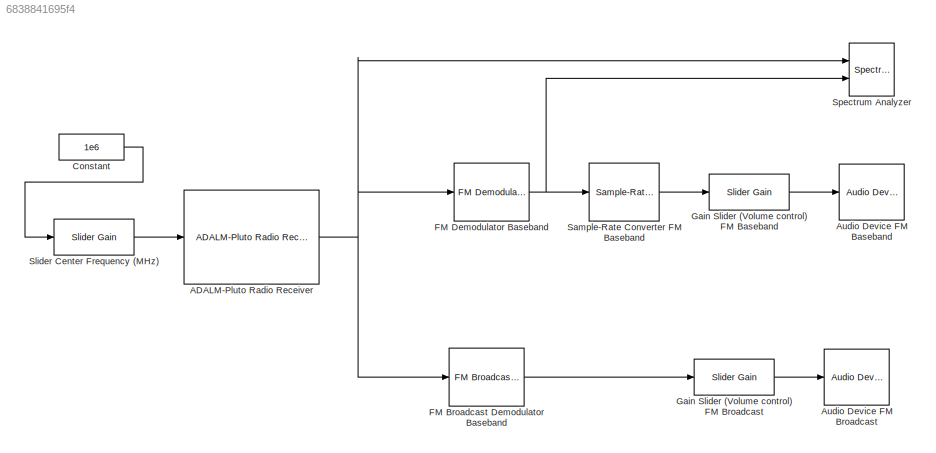
MODEL slx_6838841695f4
KIND model
CONFIG AbsTol = auto
CONFIG EnableMultiTasking = off
CONFIG FixedStep = auto
CONFIG MaxStep = auto
CONFIG MinStep = auto
CONFIG RelTol = 1e-3
CONFIG SampleTimeConstraint = Unconstrained
CONFIG Solver = FixedStepDiscrete
CONFIG SolverName = FixedStepDiscrete
CONFIG StartTime = 0.0
CONFIG StopTime = inf
BLOCK [Reference] ADALM-Pluto Radio Receiver  REF=plutoradiolib/ADALM-Pluto Radio
Receiver
  Ports = [1, 1]
  SourceBlock = plutoradiolib/ADALM-Pluto Radio\nReceiver
  SourceProductBaseCode = PLUTO
  SourceType = comm.SDRRxPluto
BLOCK [Reference] Audio Device FM Baseband  REF=dspsnks4/Audio Device
Writer
  Ports = [1]
  SourceBlock = dspsnks4/Audio Device\nWriter
  SourceProductBaseCode = DS
  SourceType = Audio Device Writer
BLOCK [Reference] Audio Device FM Broadcast  REF=dspsnks4/Audio Device
Writer
  Ports = [1]
  SourceBlock = dspsnks4/Audio Device\nWriter
  SourceProductBaseCode = DS
  SourceType = Audio Device Writer
BLOCK [Constant] Constant
  Value = 1e6
BLOCK [Reference] FM Broadcast Demodulator Baseband  REF=commanabbnd3/FM Broadcast
Demodulator
Baseband
  Ports = [1, 1]
  SourceBlock = commanabbnd3/FM Broadcast\nDemodulator\nBaseband
  SourceProductBaseCode = CM
  SourceType = FM Broadcast Demodulator Baseband
BLOCK [Reference] FM Demodulator Baseband   REF=commanabbnd3/FM
Demodulator
Baseband 
  Ports = [1, 1]
  SourceBlock = commanabbnd3/FM\nDemodulator\nBaseband
  SourceProductBaseCode = CM
  SourceType = FM Demodulator Baseband
BLOCK [Reference] Gain Slider (Volume control) FM Baseband  REF=simulink/Math
Operations/Slider
Gain
  Ports = [1, 1]
  SourceBlock = simulink/Math\nOperations/Slider\nGain
  SourceProductBaseCode = SL
  SourceType = Slider Gain
BLOCK [Reference] Gain Slider (Volume control) FM Broadcast  REF=simulink/Math
Operations/Slider
Gain
  Ports = [1, 1]
  SourceBlock = simulink/Math\nOperations/Slider\nGain
  SourceProductBaseCode = SL
  SourceType = Slider Gain
BLOCK [Reference] Sample-Rate Converter FM Baseband  REF=dspsigops/Sample-Rate
Converter
  Ports = [1, 1]
  SourceBlock = dspsigops/Sample-Rate\nConverter
  SourceProductBaseCode = DS
  SourceType = dsp.SampleRateConverter
BLOCK [Reference] Slider Center Frequency (MHz)  REF=simulink/Math
Operations/Slider
Gain
  Ports = [1, 1]
  SourceBlock = simulink/Math\nOperations/Slider\nGain
  SourceProductBaseCode = SL
  SourceType = Slider Gain
BLOCK [SpectrumAnalyzer] Spectrum Analyzer 
  NumInputPorts = 2
  Ports = [2]
  ScopeSpecificationString = spbscopes.SpectrumAnalyzerBlockCfg('CurrentConfiguration', extmgr.ConfigurationSet(extmgr.Configuration('Core','General UI',true),extmgr.Configuration('Core','Source UI',true),extmgr.Configuration('Sources','WiredSimulink',true),extmgr.Configuration('Visuals','Spectrum',true,'AxesProperties',struct('Color',{[0 0 0],[0 0 0]},'XColor',{[0.686274509803922 0.686274509803922 0.686274509803922],[0.68627...<+2238ch>
NET ADALM-Pluto Radio Receiver:1 -> FM Broadcast Demodulator Baseband:1, FM Demodulator Baseband :1, Spectrum Analyzer :1
LINE Constant:1 -> Slider Center Frequency (MHz):1
LINE FM Broadcast Demodulator Baseband:1 -> Gain Slider (Volume control) FM Broadcast:1
NET FM Demodulator Baseband :1 -> Sample-Rate Converter FM Baseband:1, Spectrum Analyzer :2
LINE Gain Slider (Volume control) FM Baseband:1 -> Audio Device FM Baseband:1
LINE Gain Slider (Volume control) FM Broadcast:1 -> Audio Device FM Broadcast:1
LINE Sample-Rate Converter FM Baseband:1 -> Gain Slider (Volume control) FM Baseband:1
LINE Slider Center Frequency (MHz):1 -> ADALM-Pluto Radio Receiver:1
note: NET lines group one-source signal fan-out (src -> all destinations, sorted); 1:1 wires keep LINE
